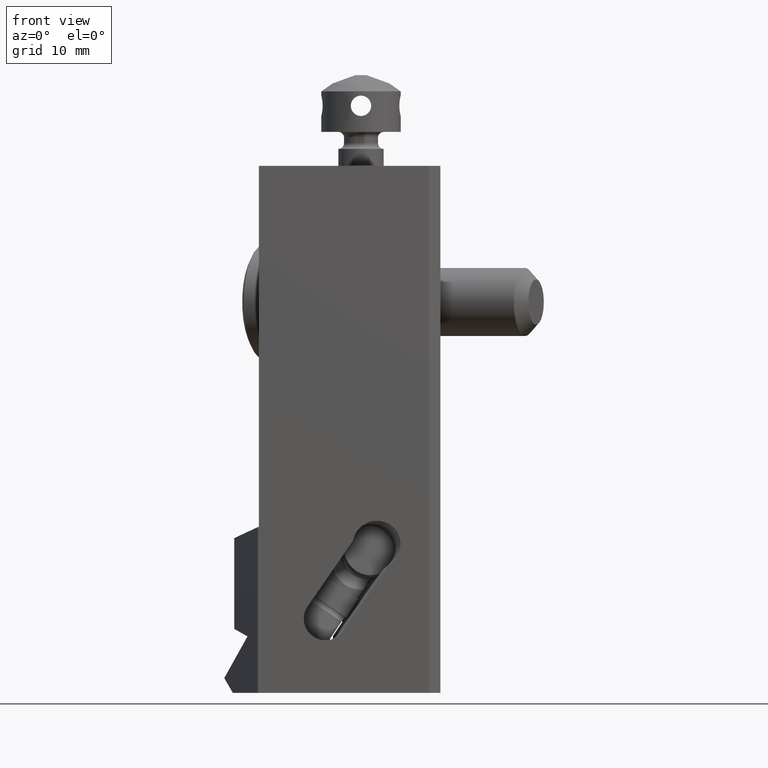
[diagram: clean part render]
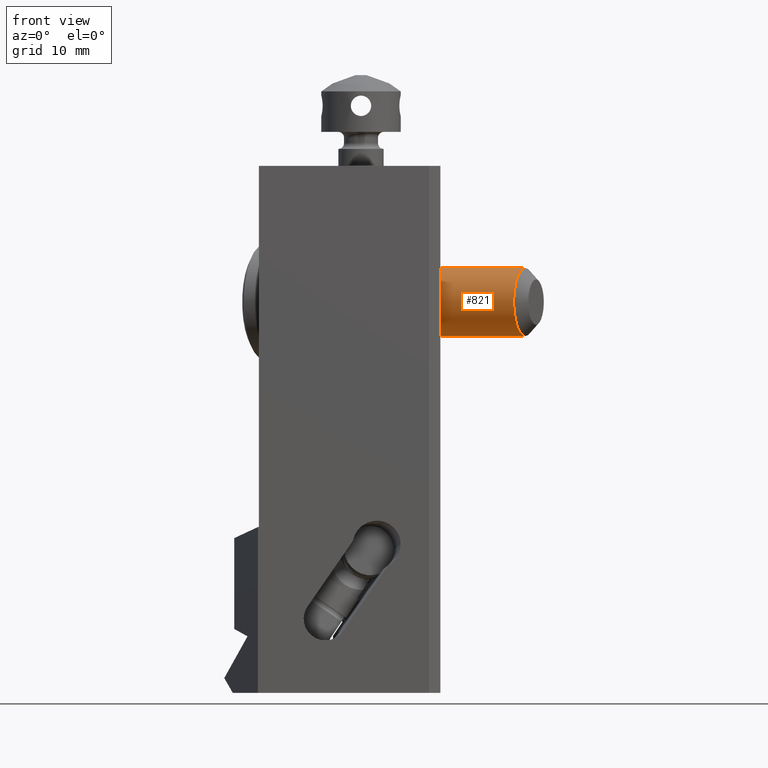
[diagram: same view with one face highlighted and labeled with its STEP entity id]
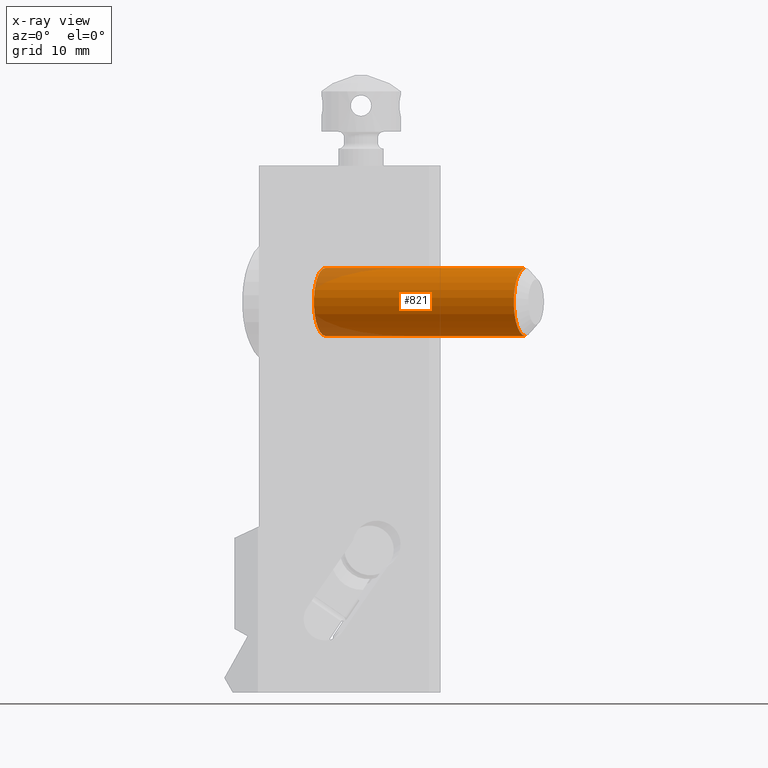
[diagram: x-ray of the same camera — body ghosted, the highlighted face saturated]
A machine part, front view. The second image highlights one B-rep face of the part: STEP entity #821.
The next image is the same camera in x-ray: the body ghosted, the highlighted face saturated — about 7% of this face is hidden behind the body in this view.
In plain terms, the highlighted cylindrical surface (edge-blend (fillet) strip) has radius 3 mm, axis along (0.9397, -0.342, 0).
Its self-contained STEP definition (entity closure, byte-faithful):
#222=CYLINDRICAL_SURFACE('',#4734,3.);
#383=CIRCLE('',#4731,3.);
#384=CIRCLE('',#4733,2.999999999999);
#595=FACE_OUTER_BOUND('',#1239,.T.);
#821=ADVANCED_FACE('',(#595),#222,.T.);
#1239=EDGE_LOOP('',(#2392,#2393,#2394,#2395));
#2392=ORIENTED_EDGE('',*,*,#3423,.T.);
#2393=ORIENTED_EDGE('',*,*,#3424,.T.);
#2394=ORIENTED_EDGE('',*,*,#3422,.F.);
#2395=ORIENTED_EDGE('',*,*,#3425,.T.);
#2831=VERTEX_POINT('',#7860);
#2832=VERTEX_POINT('',#7862);
#2833=VERTEX_POINT('',#7868);
#2834=VERTEX_POINT('',#7869);
#3422=EDGE_CURVE('',#2832,#2831,#383,.T.);
#3423=EDGE_CURVE('',#2833,#2834,#384,.T.);
#3424=EDGE_CURVE('',#2834,#2831,#3797,.T.);
#3425=EDGE_CURVE('',#2832,#2833,#3798,.T.);
#3797=LINE('',#7870,#4159);
#3798=LINE('',#7871,#4160);
#4159=VECTOR('',#5962,1.);
#4160=VECTOR('',#5963,1.);
#4731=AXIS2_PLACEMENT_3D('',#7865,#5956,#5957);
#4733=AXIS2_PLACEMENT_3D('',#7867,#5960,#5961);
#4734=AXIS2_PLACEMENT_3D('',#7872,#5964,#5965);
#5956=DIRECTION('',(0.939692620787022,-0.342020143322608,0.));
#5957=DIRECTION('',(-5.25418828815442E-12,-1.44356459656307E-11,1.));
#5960=DIRECTION('',(0.939692620786038,-0.342020143325314,0.));
#5961=DIRECTION('',(-4.37670732989094E-12,-1.20251031354752E-11,1.));
#5962=DIRECTION('',(0.93969262078633,-0.342020143324511,-1.89478062869406E-14));
#5963=DIRECTION('',(-0.939692620786622,0.342020143323708,-2.21689333557105E-14));
#5964=DIRECTION('',(0.939692620787022,-0.342020143322608,0.));
#5965=DIRECTION('',(2.40953090813179E-12,6.6197047843275E-12,1.));
#7860=CARTESIAN_POINT('',(7.492315519655,3.273020165141,-15.));
#7862=CARTESIAN_POINT('',(7.492315519654,3.273020165136,-9.));
#7865=CARTESIAN_POINT('',(7.492315519671,3.2730201652,-12.));
#7867=CARTESIAN_POINT('',(-10.12692112009,9.685897852474,-12.));
#7868=CARTESIAN_POINT('',(-10.1269211201,9.685897852456,-9.));
#7869=CARTESIAN_POINT('',(-10.12692112009,9.685897852475,-15.));
#7870=CARTESIAN_POINT('',(-10.12692112009,9.685897852475,-15.));
#7871=CARTESIAN_POINT('',(7.492315519654,3.273020165136,-9.));
#7872=CARTESIAN_POINT('',(-10.47930585287,9.814155406241,-12.));